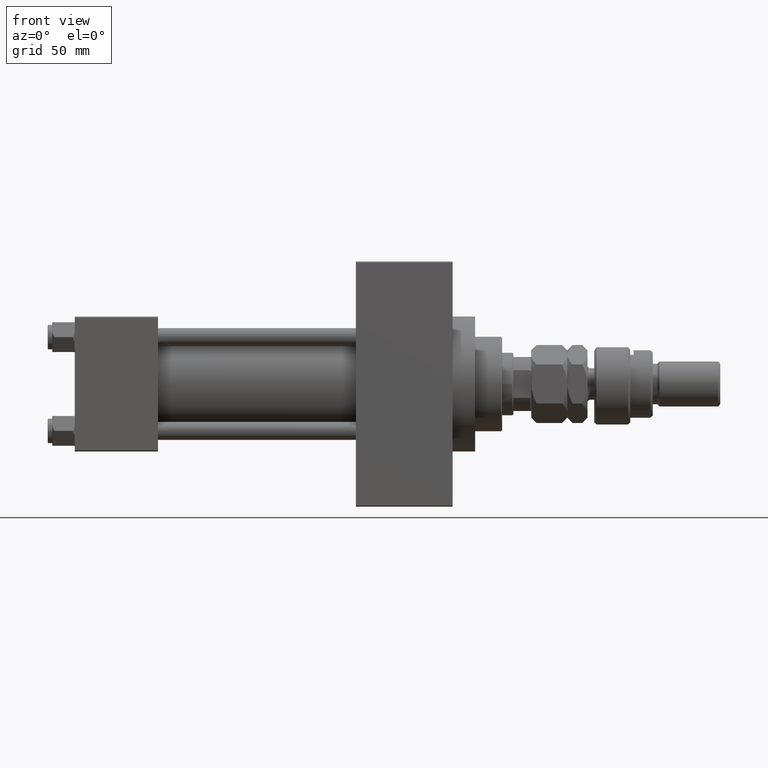
[diagram: clean part render]
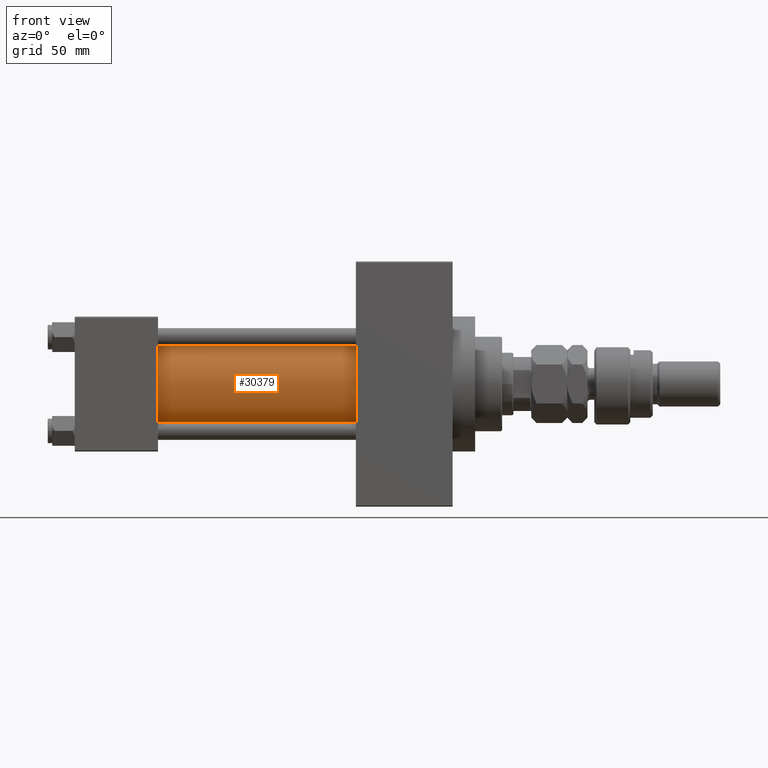
[diagram: same view with one face highlighted and labeled with its STEP entity id]
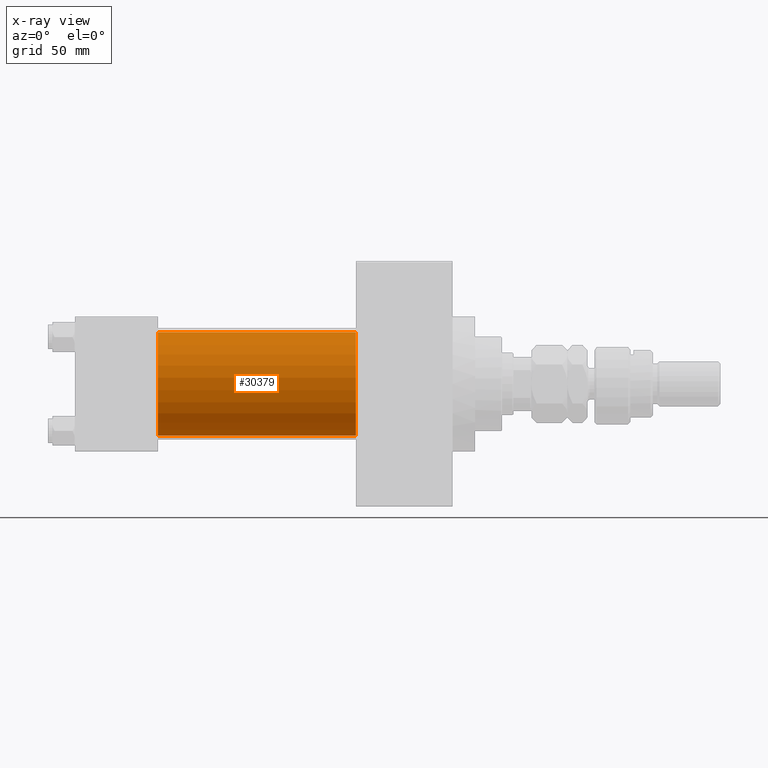
[diagram: x-ray of the same camera — body ghosted, the highlighted face saturated]
A machine part, front view. The second image highlights one B-rep face of the part: STEP entity #30379.
The next image is the same camera in x-ray: the body ghosted, the highlighted face saturated — about 0% of this face is hidden behind the body in this view.
In plain terms, the highlighted cylindrical surface (partial cylindrical patch) has radius 23 mm, axis along (-1, -0, -0).
Its self-contained STEP definition (entity closure, byte-faithful):
#45 = CARTESIAN_POINT ( 'NONE',  ( 125.0000000000000000, -2.602085213965210642E-15, 23.00000000000000000 ) ) ;
#217 = CYLINDRICAL_SURFACE ( 'NONE', #24425, 23.00000000000000000 ) ;
#1761 = VERTEX_POINT ( 'NONE', #7879 ) ;
#4155 = LINE ( 'NONE', #31063, #42223 ) ;
#4188 = VERTEX_POINT ( 'NONE', #46631 ) ;
#5978 = DIRECTION ( 'NONE',  ( 1.000000000000000000, 0.000000000000000000, 0.000000000000000000 ) ) ;
#7879 = CARTESIAN_POINT ( 'NONE',  ( 125.0000000000000000, 2.146024240737016609E-16, -23.00000000000000000 ) ) ;
#8897 = CARTESIAN_POINT ( 'NONE',  ( 125.0000000000000000, -2.602085213965210642E-15, 0.000000000000000000 ) ) ;
#10113 = AXIS2_PLACEMENT_3D ( 'NONE', #8897, #5978, #25556 ) ;
#14829 = VERTEX_POINT ( 'NONE', #20797 ) ;
#16134 = DIRECTION ( 'NONE',  ( -1.000000000000000000, -0.000000000000000000, -0.000000000000000000 ) ) ;
#18901 = DIRECTION ( 'NONE',  ( -1.000000000000000000, -0.000000000000000000, -0.000000000000000000 ) ) ;
#19271 = ORIENTED_EDGE ( 'NONE', *, *, #30753, .F. ) ;
#19575 = EDGE_CURVE ( 'NONE', #1761, #14829, #4155, .T. ) ;
#19684 = EDGE_CURVE ( 'NONE', #4188, #33586, #28131, .T. ) ;
#20019 = CARTESIAN_POINT ( 'NONE',  ( 37.00000000000000711, -2.602085213965210642E-15, 0.000000000000000000 ) ) ;
#20535 = ORIENTED_EDGE ( 'NONE', *, *, #19684, .T. ) ;
#20797 = CARTESIAN_POINT ( 'NONE',  ( 37.00000000000000711, 2.146024240737016609E-16, -23.00000000000000000 ) ) ;
#22243 = CIRCLE ( 'NONE', #23892, 23.00000000000000000 ) ;
#23892 = AXIS2_PLACEMENT_3D ( 'NONE', #20019, #36178, #32719 ) ;
#24425 = AXIS2_PLACEMENT_3D ( 'NONE', #44234, #16134, #32542 ) ;
#25031 = EDGE_CURVE ( 'NONE', #33586, #14829, #22243, .T. ) ;
#25556 = DIRECTION ( 'NONE',  ( 0.000000000000000000, 0.000000000000000000, -1.000000000000000000 ) ) ;
#28041 = FACE_OUTER_BOUND ( 'NONE', #31814, .T. ) ;
#28131 = LINE ( 'NONE', #45, #43098 ) ;
#30379 = ADVANCED_FACE ( 'NONE', ( #28041 ), #217, .T. ) ;
#30753 = EDGE_CURVE ( 'NONE', #4188, #1761, #32945, .T. ) ;
#31063 = CARTESIAN_POINT ( 'NONE',  ( 125.0000000000000000, 2.146024240737016609E-16, -23.00000000000000000 ) ) ;
#31814 = EDGE_LOOP ( 'NONE', ( #48686, #19271, #20535, #38647 ) ) ;
#32369 = DIRECTION ( 'NONE',  ( -1.000000000000000000, -0.000000000000000000, -0.000000000000000000 ) ) ;
#32542 = DIRECTION ( 'NONE',  ( 0.000000000000000000, 0.000000000000000000, 1.000000000000000000 ) ) ;
#32719 = DIRECTION ( 'NONE',  ( 0.000000000000000000, 0.000000000000000000, 1.000000000000000000 ) ) ;
#32945 = CIRCLE ( 'NONE', #10113, 23.00000000000000000 ) ;
#33586 = VERTEX_POINT ( 'NONE', #45795 ) ;
#36178 = DIRECTION ( 'NONE',  ( 1.000000000000000000, -0.000000000000000000, 0.000000000000000000 ) ) ;
#38647 = ORIENTED_EDGE ( 'NONE', *, *, #25031, .T. ) ;
#42223 = VECTOR ( 'NONE', #18901, 1000.000000000000000 ) ;
#43098 = VECTOR ( 'NONE', #32369, 1000.000000000000000 ) ;
#44234 = CARTESIAN_POINT ( 'NONE',  ( 125.0000000000000000, -2.602085213965210642E-15, 0.000000000000000000 ) ) ;
#45795 = CARTESIAN_POINT ( 'NONE',  ( 37.00000000000000711, -2.602085213965210642E-15, 23.00000000000000000 ) ) ;
#46631 = CARTESIAN_POINT ( 'NONE',  ( 125.0000000000000000, -2.602085213965210642E-15, 23.00000000000000000 ) ) ;
#48686 = ORIENTED_EDGE ( 'NONE', *, *, #19575, .F. ) ;